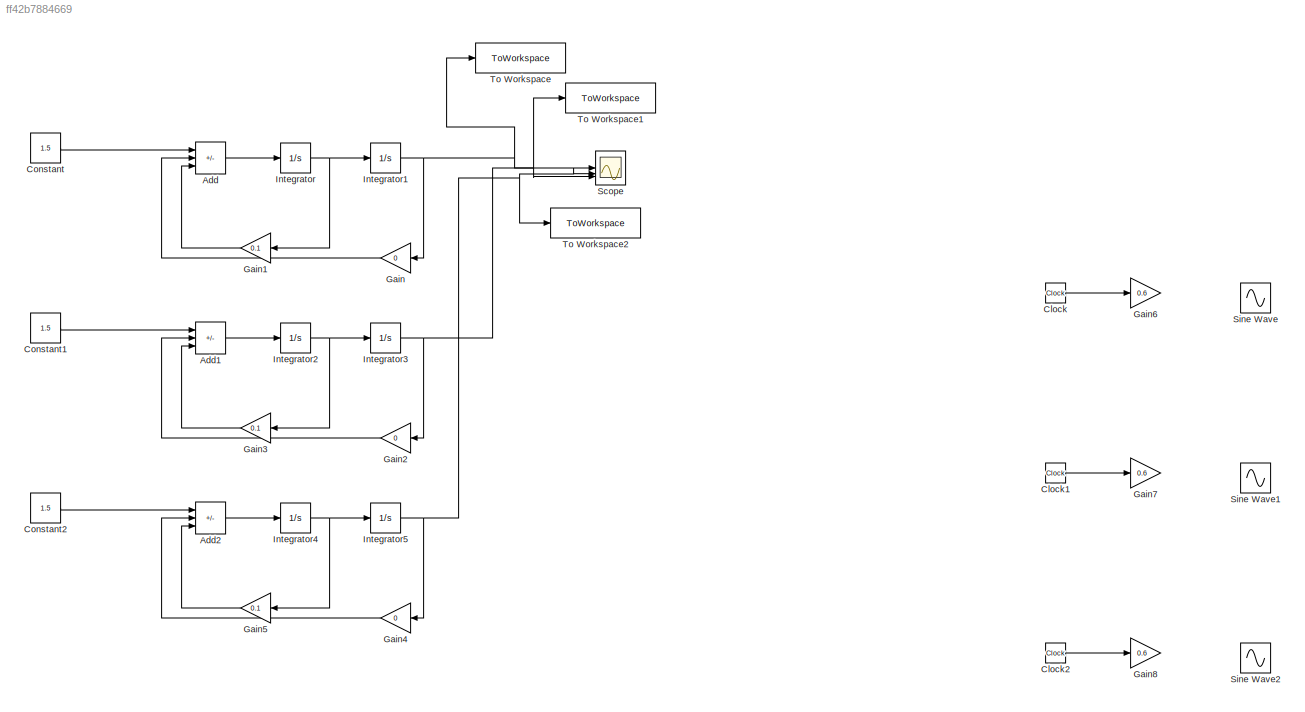
MODEL slx_ff42b7884669
KIND model
CONFIG AbsTol = auto
CONFIG EnableMultiTasking = off
CONFIG FixedStep = 0.001
CONFIG MaxStep = auto
CONFIG MinStep = auto
CONFIG RelTol = 1e-3
CONFIG SampleTimeConstraint = Unconstrained
CONFIG SolverName = FixedStepAuto
CONFIG StartTime = 0.0
CONFIG StopTime = 10
BLOCK [Sum] Add
  IconShape = rectangular
  Inputs = +--
BLOCK [Sum] Add1
  IconShape = rectangular
  Inputs = +--
BLOCK [Sum] Add2
  IconShape = rectangular
  Inputs = +--
BLOCK [Clock] Clock
BLOCK [Clock] Clock1
BLOCK [Clock] Clock2
BLOCK [Constant] Constant
  SampleTime = -1
  Value = 1.5
BLOCK [Constant] Constant1
  SampleTime = -1
  Value = 1.5
BLOCK [Constant] Constant2
  SampleTime = -1
  Value = 1.5
BLOCK [Gain] Gain
  Gain = 0
  NameLocation = top
BLOCK [Gain] Gain1
  Gain = 0.1
  NameLocation = top
BLOCK [Gain] Gain2
  Gain = 0
  NameLocation = top
BLOCK [Gain] Gain3
  Gain = 0.1
  NameLocation = top
BLOCK [Gain] Gain4
  Gain = 0
  NameLocation = top
BLOCK [Gain] Gain5
  Gain = 0.1
  NameLocation = top
BLOCK [Gain] Gain6
  Gain = 0.6
BLOCK [Gain] Gain7
  Gain = 0.6
BLOCK [Gain] Gain8
  Gain = 0.6
BLOCK [Integrator] Integrator
BLOCK [Integrator] Integrator1
  InitialCondition = -1
BLOCK [Integrator] Integrator2
BLOCK [Integrator] Integrator3
BLOCK [Integrator] Integrator4
BLOCK [Integrator] Integrator5
  InitialCondition = 1
BLOCK [Scope] Scope
  Floating = off
  NumInputPorts = 3
  ScopeSpecificationString = Simulink.scopes.TimeScopeBlockCfg('CurrentConfiguration', extmgr.ConfigurationSet(extmgr.Configuration('Core','General UI',true),extmgr.Configuration('Core','Source UI',true),extmgr.Configuration('Sources','WiredSimulink',true),extmgr.Configuration('Visuals','Time Domain',true,'SerializedDisplays',{struct('MinYLimReal','-50401988073423734606170871337550128087040.00000','MaxYLimReal','4536178926608...<+1681ch>
BLOCK [Sin] Sine Wave
  Amplitude = 6
  SampleTime = 0
BLOCK [Sin] Sine Wave1
  Amplitude = 6
  SampleTime = 0
BLOCK [Sin] Sine Wave2
  Amplitude = 6
  SampleTime = 0
BLOCK [ToWorkspace] To Workspace
  FixptAsFi = on
  MaxDataPoints = inf
  SampleTime = -1
  SaveFormat = Timeseries
  VariableName = simout
BLOCK [ToWorkspace] To Workspace1
  FixptAsFi = on
  MaxDataPoints = inf
  SampleTime = -1
  SaveFormat = Timeseries
  VariableName = simout0
BLOCK [ToWorkspace] To Workspace2
  FixptAsFi = on
  MaxDataPoints = inf
  SampleTime = -1
  SaveFormat = Timeseries
  VariableName = simout1
LINE Add1:1 -> Integrator2:1
LINE Add2:1 -> Integrator4:1
LINE Add:1 -> Integrator:1
LINE Clock1:1 -> Gain7:1
LINE Clock2:1 -> Gain8:1
LINE Clock:1 -> Gain6:1
LINE Constant1:1 -> Add1:1
LINE Constant2:1 -> Add2:1
LINE Constant:1 -> Add:1
LINE Gain1:1 -> Add:3
LINE Gain2:1 -> Add1:2
LINE Gain3:1 -> Add1:3
LINE Gain4:1 -> Add2:2
LINE Gain5:1 -> Add2:3
LINE Gain:1 -> Add:2
NET Integrator1:1 -> Gain:1, Scope:1, To Workspace:1
NET Integrator2:1 -> Gain3:1, Integrator3:1
NET Integrator3:1 -> Gain2:1, Scope:3, To Workspace1:1
NET Integrator4:1 -> Gain5:1, Integrator5:1
NET Integrator5:1 -> Gain4:1, Scope:2, To Workspace2:1
NET Integrator:1 -> Gain1:1, Integrator1:1
note: NET lines group one-source signal fan-out (src -> all destinations, sorted); 1:1 wires keep LINE
